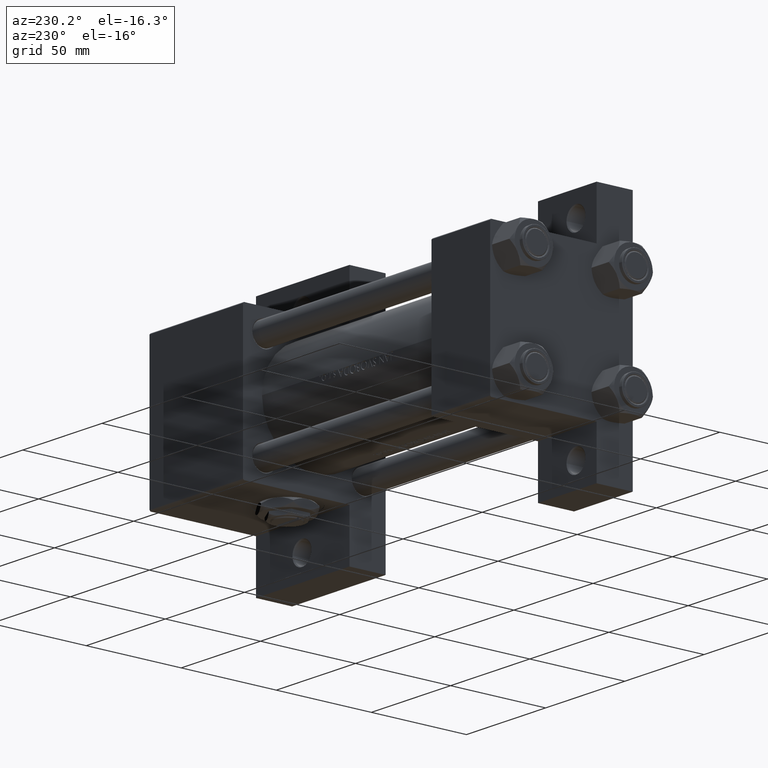
[diagram: clean part render]
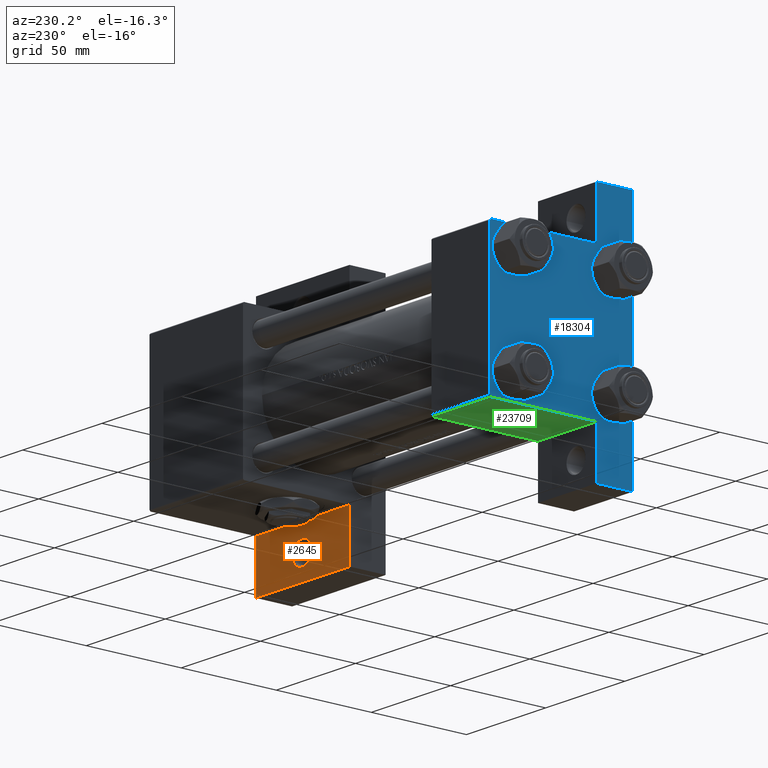
[diagram: same view with three faces highlighted in distinct colors, each labeled with its STEP entity id]
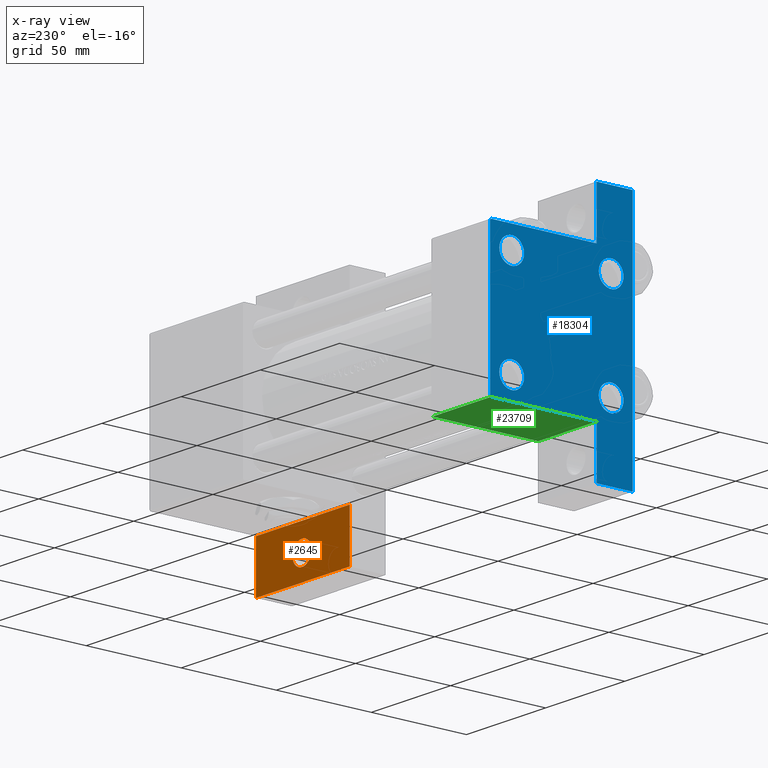
[diagram: x-ray of the same camera — body ghosted, the three highlighted faces saturated]
A machine part, auxiliary view with three faces highlighted in distinct colors.
The next image is the same camera in x-ray (body ghosted, the three faces saturated) — at least one of them is partly hidden behind the body in this view.
Their STEP definitions:

[orange] entity #2645 — the highlighted planar face has unit normal (0, 1, 0).
#950 = CARTESIAN_POINT ( 'NONE',  ( 215.0000000000000284, 37.49999999999996447, -18.50000000000000000 ) ) ;
#2366 = ORIENTED_EDGE ( 'NONE', *, *, #39757, .T. ) ;
#2645 = ADVANCED_FACE ( 'NONE', ( #27720, #9502 ), #24724, .T. ) ;
#3049 = CARTESIAN_POINT ( 'NONE',  ( 186.0000000000000000, 51.00000000000000000, -18.50000000000000000 ) ) ;
#3127 = VERTEX_POINT ( 'NONE', #950 ) ;
#3601 = EDGE_LOOP ( 'NONE', ( #42012, #2366 ) ) ;
#3712 = CARTESIAN_POINT ( 'NONE',  ( 156.0000000000000000, 37.50000000000000000, -18.50000000000000355 ) ) ;
#4039 = EDGE_CURVE ( 'NONE', #15583, #3127, #29985, .T. ) ;
#4447 = DIRECTION ( 'NONE',  ( -1.000000000000000000, 5.880418562633242031E-16, -0.000000000000000000 ) ) ;
#5315 = VERTEX_POINT ( 'NONE', #39258 ) ;
#6231 = CARTESIAN_POINT ( 'NONE',  ( 156.0000000000000284, 63.49999999999998579, -18.50000000000000000 ) ) ;
#8753 = ORIENTED_EDGE ( 'NONE', *, *, #13705, .F. ) ;
#9066 = AXIS2_PLACEMENT_3D ( 'NONE', #9256, #31947, #39914 ) ;
#9256 = CARTESIAN_POINT ( 'NONE',  ( 0.000000000000000000, 0.000000000000000000, -18.50000000000000000 ) ) ;
#9502 = FACE_OUTER_BOUND ( 'NONE', #28206, .T. ) ;
#9650 = CARTESIAN_POINT ( 'NONE',  ( 191.9995000000000402, 51.00000000000000000, -18.50000000000000000 ) ) ;
#10396 = VECTOR ( 'NONE', #21430, 1000.000000000000000 ) ;
#10928 = VECTOR ( 'NONE', #4447, 1000.000000000000000 ) ;
#11652 = EDGE_CURVE ( 'NONE', #40831, #22710, #44895, .T. ) ;
#13705 = EDGE_CURVE ( 'NONE', #22710, #15583, #47839, .T. ) ;
#13746 = CARTESIAN_POINT ( 'NONE',  ( 156.0000000000000284, 63.49999999999998579, -18.50000000000000000 ) ) ;
#15583 = VERTEX_POINT ( 'NONE', #42204 ) ;
#16437 = DIRECTION ( 'NONE',  ( -0.000000000000000000, -0.000000000000000000, -1.000000000000000000 ) ) ;
#16562 = VECTOR ( 'NONE', #21344, 1000.000000000000000 ) ;
#17362 = CARTESIAN_POINT ( 'NONE',  ( 215.0000000000000568, 63.49999999999998579, -18.50000000000000000 ) ) ;
#18295 = VECTOR ( 'NONE', #29707, 1000.000000000000000 ) ;
#21344 = DIRECTION ( 'NONE',  ( -1.067522139062649685E-15, -1.000000000000000000, 0.000000000000000000 ) ) ;
#21430 = DIRECTION ( 'NONE',  ( 1.000000000000000000, 0.000000000000000000, 0.000000000000000000 ) ) ;
#22710 = VERTEX_POINT ( 'NONE', #42180 ) ;
#23677 = CARTESIAN_POINT ( 'NONE',  ( 186.0000000000000000, 51.00000000000000000, -18.50000000000000000 ) ) ;
#24724 = PLANE ( 'NONE',  #9066 ) ;
#25246 = AXIS2_PLACEMENT_3D ( 'NONE', #23677, #16437, #38866 ) ;
#27127 = LINE ( 'NONE', #37597, #10928 ) ;
#27720 = FACE_BOUND ( 'NONE', #3601, .T. ) ;
#28206 = EDGE_LOOP ( 'NONE', ( #31290, #37753, #37783, #8753 ) ) ;
#29707 = DIRECTION ( 'NONE',  ( 1.067522139062651066E-15, 1.000000000000000000, -0.000000000000000000 ) ) ;
#29985 = LINE ( 'NONE', #17362, #16562 ) ;
#31290 = ORIENTED_EDGE ( 'NONE', *, *, #11652, .F. ) ;
#31947 = DIRECTION ( 'NONE',  ( 0.000000000000000000, 0.000000000000000000, 1.000000000000000000 ) ) ;
#33192 = CIRCLE ( 'NONE', #25246, 5.999500000000046462 ) ;
#37597 = CARTESIAN_POINT ( 'NONE',  ( 156.0000000000000000, 37.50000000000000000, -18.50000000000000000 ) ) ;
#37753 = ORIENTED_EDGE ( 'NONE', *, *, #40877, .F. ) ;
#37783 = ORIENTED_EDGE ( 'NONE', *, *, #4039, .F. ) ;
#38866 = DIRECTION ( 'NONE',  ( 1.000000000000000000, 0.000000000000000000, 0.000000000000000000 ) ) ;
#39258 = CARTESIAN_POINT ( 'NONE',  ( 180.0004999999999598, 51.00000000000000000, -18.50000000000000000 ) ) ;
#39757 = EDGE_CURVE ( 'NONE', #5315, #48844, #33192, .T. ) ;
#39914 = DIRECTION ( 'NONE',  ( 1.000000000000000000, 0.000000000000000000, -0.000000000000000000 ) ) ;
#40450 = AXIS2_PLACEMENT_3D ( 'NONE', #3049, #41167, #45641 ) ;
#40831 = VERTEX_POINT ( 'NONE', #3712 ) ;
#40877 = EDGE_CURVE ( 'NONE', #3127, #40831, #27127, .T. ) ;
#41167 = DIRECTION ( 'NONE',  ( -0.000000000000000000, -0.000000000000000000, -1.000000000000000000 ) ) ;
#42012 = ORIENTED_EDGE ( 'NONE', *, *, #42790, .T. ) ;
#42180 = CARTESIAN_POINT ( 'NONE',  ( 156.0000000000000284, 63.49999999999998579, -18.50000000000000000 ) ) ;
#42204 = CARTESIAN_POINT ( 'NONE',  ( 215.0000000000000568, 63.49999999999998579, -18.50000000000000000 ) ) ;
#42790 = EDGE_CURVE ( 'NONE', #48844, #5315, #47572, .T. ) ;
#44895 = LINE ( 'NONE', #13746, #18295 ) ;
#45641 = DIRECTION ( 'NONE',  ( 1.000000000000000000, 0.000000000000000000, 0.000000000000000000 ) ) ;
#47572 = CIRCLE ( 'NONE', #40450, 5.999500000000046462 ) ;
#47839 = LINE ( 'NONE', #6231, #10396 ) ;
#48844 = VERTEX_POINT ( 'NONE', #9650 ) ;

[blue] entity #18304 — the highlighted planar face has unit normal (-1, 0, -0).
#693 = VERTEX_POINT ( 'NONE', #48945 ) ;
#1022 = DIRECTION ( 'NONE',  ( 1.000000000000000000, -0.000000000000000000, 0.000000000000000000 ) ) ;
#1147 = VERTEX_POINT ( 'NONE', #48313 ) ;
#1161 = VERTEX_POINT ( 'NONE', #14672 ) ;
#1322 = FACE_BOUND ( 'NONE', #21246, .T. ) ;
#1345 = AXIS2_PLACEMENT_3D ( 'NONE', #22298, #44478, #14316 ) ;
#2187 = CARTESIAN_POINT ( 'NONE',  ( 0.000000000000000000, -26.14999999999999147, 26.15000000000000924 ) ) ;
#2722 = VERTEX_POINT ( 'NONE', #21223 ) ;
#2800 = CARTESIAN_POINT ( 'NONE',  ( 0.000000000000000000, 37.49999999999999289, 37.50000000000000000 ) ) ;
#3145 = CIRCLE ( 'NONE', #4730, 6.500000000000015987 ) ;
#3476 = CARTESIAN_POINT ( 'NONE',  ( 0.000000000000000000, 26.14999999999999858, -19.64999999999998792 ) ) ;
#4007 = DIRECTION ( 'NONE',  ( -0.000000000000000000, 0.7071067811865474617, 0.7071067811865474617 ) ) ;
#4170 = EDGE_CURVE ( 'NONE', #39359, #1161, #39188, .T. ) ;
#4258 = CARTESIAN_POINT ( 'NONE',  ( 0.000000000000000000, 26.14999999999999858, 26.15000000000000213 ) ) ;
#4537 = CIRCLE ( 'NONE', #32401, 6.500000000000023093 ) ;
#4571 = CIRCLE ( 'NONE', #34693, 6.500000000000015987 ) ;
#4635 = DIRECTION ( 'NONE',  ( 1.000000000000000000, -0.000000000000000000, 0.000000000000000000 ) ) ;
#4730 = AXIS2_PLACEMENT_3D ( 'NONE', #11249, #23209, #26941 ) ;
#4905 = DIRECTION ( 'NONE',  ( 0.000000000000000000, 0.000000000000000000, 1.000000000000000000 ) ) ;
#5054 = FACE_BOUND ( 'NONE', #43305, .T. ) ;
#5145 = CARTESIAN_POINT ( 'NONE',  ( 0.000000000000000000, 26.14999999999999858, 26.15000000000000213 ) ) ;
#5198 = ORIENTED_EDGE ( 'NONE', *, *, #31385, .T. ) ;
#5222 = VECTOR ( 'NONE', #24750, 1000.000000000000000 ) ;
#5227 = AXIS2_PLACEMENT_3D ( 'NONE', #32180, #47369, #17221 ) ;
#5314 = ORIENTED_EDGE ( 'NONE', *, *, #18549, .T. ) ;
#6453 = ORIENTED_EDGE ( 'NONE', *, *, #42840, .F. ) ;
#7190 = EDGE_CURVE ( 'NONE', #15923, #35590, #3145, .T. ) ;
#7420 = ORIENTED_EDGE ( 'NONE', *, *, #7190, .T. ) ;
#7533 = VECTOR ( 'NONE', #34788, 1000.000000000000000 ) ;
#7744 = ORIENTED_EDGE ( 'NONE', *, *, #39047, .T. ) ;
#8031 = DIRECTION ( 'NONE',  ( 0.000000000000000000, -1.734723475976806848E-16, -1.000000000000000000 ) ) ;
#8170 = CARTESIAN_POINT ( 'NONE',  ( 0.000000000000000000, 26.14999999999999858, 19.64999999999998437 ) ) ;
#8353 = CARTESIAN_POINT ( 'NONE',  ( 0.000000000000000000, 36.99999999999999289, 37.50000000000000000 ) ) ;
#8427 = CARTESIAN_POINT ( 'NONE',  ( 1.595073532467135441E-14, 63.50000000000000000, -37.50000000000002132 ) ) ;
#8473 = ORIENTED_EDGE ( 'NONE', *, *, #12731, .T. ) ;
#9126 = VERTEX_POINT ( 'NONE', #12735 ) ;
#10027 = VECTOR ( 'NONE', #15181, 1000.000000000000000 ) ;
#10767 = VECTOR ( 'NONE', #44704, 1000.000000000000000 ) ;
#10898 = ORIENTED_EDGE ( 'NONE', *, *, #19306, .T. ) ;
#11249 = CARTESIAN_POINT ( 'NONE',  ( 0.000000000000000000, -26.14999999999999147, -26.15000000000000924 ) ) ;
#11351 = CIRCLE ( 'NONE', #17720, 6.500000000000023093 ) ;
#11971 = CARTESIAN_POINT ( 'NONE',  ( 0.000000000000000000, 37.49999999999999289, -18.49999999999999645 ) ) ;
#12305 = CARTESIAN_POINT ( 'NONE',  ( 0.000000000000000000, -26.14999999999999147, -19.64999999999999503 ) ) ;
#12729 = CARTESIAN_POINT ( 'NONE',  ( 0.000000000000000000, -26.14999999999999147, -32.65000000000002700 ) ) ;
#12731 = EDGE_CURVE ( 'NONE', #24407, #9126, #41879, .T. ) ;
#12735 = CARTESIAN_POINT ( 'NONE',  ( 0.000000000000000000, -37.00000000000000711, 37.49999999999999289 ) ) ;
#12930 = DIRECTION ( 'NONE',  ( -2.877097866686192789E-16, -1.000000000000000000, 0.000000000000000000 ) ) ;
#12965 = AXIS2_PLACEMENT_3D ( 'NONE', #46901, #27987, #46410 ) ;
#14275 = CARTESIAN_POINT ( 'NONE',  ( 0.000000000000000000, -26.14999999999999147, 32.65000000000003411 ) ) ;
#14316 = DIRECTION ( 'NONE',  ( 0.000000000000000000, 0.000000000000000000, 1.000000000000000000 ) ) ;
#14672 = CARTESIAN_POINT ( 'NONE',  ( 3.977209754999747208E-16, -63.50000000000000000, -37.49999999999999289 ) ) ;
#14859 = ORIENTED_EDGE ( 'NONE', *, *, #41114, .T. ) ;
#15181 = DIRECTION ( 'NONE',  ( 0.000000000000000000, -1.000000000000000000, -9.251858538542972814E-17 ) ) ;
#15513 = VECTOR ( 'NONE', #48703, 1000.000000000000114 ) ;
#15923 = VERTEX_POINT ( 'NONE', #12729 ) ;
#16014 = CARTESIAN_POINT ( 'NONE',  ( 3.977209754999747208E-16, -63.49999999999998579, 26.72167621838007889 ) ) ;
#16711 = ORIENTED_EDGE ( 'NONE', *, *, #16926, .F. ) ;
#16926 = EDGE_CURVE ( 'NONE', #2722, #18584, #25137, .T. ) ;
#17221 = DIRECTION ( 'NONE',  ( 0.000000000000000000, 0.000000000000000000, 1.000000000000000000 ) ) ;
#17720 = AXIS2_PLACEMENT_3D ( 'NONE', #4258, #1022, #19713 ) ;
#17799 = CARTESIAN_POINT ( 'NONE',  ( 1.595073532467135441E-14, 63.50000000000001421, 26.72167621838005047 ) ) ;
#17838 = EDGE_CURVE ( 'NONE', #45330, #39359, #37367, .T. ) ;
#17932 = DIRECTION ( 'NONE',  ( 4.278042683914906889E-17, -1.000000000000000000, 0.000000000000000000 ) ) ;
#18167 = VERTEX_POINT ( 'NONE', #14275 ) ;
#18304 = ADVANCED_FACE ( 'NONE', ( #5054, #20252, #35208, #1322, #31707 ), #42430, .T. ) ;
#18549 = EDGE_CURVE ( 'NONE', #42393, #26810, #11351, .T. ) ;
#18584 = VERTEX_POINT ( 'NONE', #11971 ) ;
#18737 = LINE ( 'NONE', #30197, #26124 ) ;
#18827 = VERTEX_POINT ( 'NONE', #8427 ) ;
#18843 = EDGE_LOOP ( 'NONE', ( #10898, #7420 ) ) ;
#18993 = CARTESIAN_POINT ( 'NONE',  ( 3.977209754999747208E-16, -63.50000000000000000, -18.50000000000000355 ) ) ;
#19306 = EDGE_CURVE ( 'NONE', #35590, #15923, #38459, .T. ) ;
#19713 = DIRECTION ( 'NONE',  ( 0.000000000000000000, 0.000000000000000000, 1.000000000000000000 ) ) ;
#20252 = FACE_BOUND ( 'NONE', #18843, .T. ) ;
#21148 = CARTESIAN_POINT ( 'NONE',  ( 0.000000000000000000, 26.14999999999999858, -26.15000000000000213 ) ) ;
#21223 = CARTESIAN_POINT ( 'NONE',  ( 1.595073532467135441E-14, 63.50000000000000000, -18.50000000000000355 ) ) ;
#21246 = EDGE_LOOP ( 'NONE', ( #5314, #37824 ) ) ;
#21607 = DIRECTION ( 'NONE',  ( 0.000000000000000000, 0.000000000000000000, 1.000000000000000000 ) ) ;
#21840 = CARTESIAN_POINT ( 'NONE',  ( -7.145701223179004046E-16, -37.50000000000000711, -18.50000000000000355 ) ) ;
#22298 = CARTESIAN_POINT ( 'NONE',  ( 0.000000000000000000, -26.14999999999999147, 26.15000000000000924 ) ) ;
#22386 = ORIENTED_EDGE ( 'NONE', *, *, #17838, .F. ) ;
#22843 = ORIENTED_EDGE ( 'NONE', *, *, #37649, .T. ) ;
#22938 = CARTESIAN_POINT ( 'NONE',  ( -0.000000000000000000, -37.25000000000000000, 37.25000000000000000 ) ) ;
#23209 = DIRECTION ( 'NONE',  ( 1.000000000000000000, -0.000000000000000000, 0.000000000000000000 ) ) ;
#23413 = CARTESIAN_POINT ( 'NONE',  ( 0.000000000000000000, 37.49999999999999289, -37.50000000000000000 ) ) ;
#23581 = DIRECTION ( 'NONE',  ( 0.000000000000000000, 0.000000000000000000, 1.000000000000000000 ) ) ;
#23638 = EDGE_LOOP ( 'NONE', ( #6453, #8473, #33607, #48705, #47156, #16711, #47042, #43767, #24869, #22386 ) ) ;
#24407 = VERTEX_POINT ( 'NONE', #41803 ) ;
#24408 = CIRCLE ( 'NONE', #1345, 6.500000000000023093 ) ;
#24465 = AXIS2_PLACEMENT_3D ( 'NONE', #2187, #25831, #21607 ) ;
#24750 = DIRECTION ( 'NONE',  ( 0.000000000000000000, 0.000000000000000000, -1.000000000000000000 ) ) ;
#24869 = ORIENTED_EDGE ( 'NONE', *, *, #4170, .F. ) ;
#24959 = AXIS2_PLACEMENT_3D ( 'NONE', #38031, #4635, #23581 ) ;
#24992 = LINE ( 'NONE', #2800, #5222 ) ;
#25137 = LINE ( 'NONE', #39599, #35173 ) ;
#25831 = DIRECTION ( 'NONE',  ( 1.000000000000000000, -0.000000000000000000, 0.000000000000000000 ) ) ;
#26124 = VECTOR ( 'NONE', #45394, 1000.000000000000000 ) ;
#26810 = VERTEX_POINT ( 'NONE', #8170 ) ;
#26825 = CARTESIAN_POINT ( 'NONE',  ( 0.000000000000000000, 37.49999999999999289, 37.50000000000000000 ) ) ;
#26941 = DIRECTION ( 'NONE',  ( 0.000000000000000000, 0.000000000000000000, 1.000000000000000000 ) ) ;
#27175 = VERTEX_POINT ( 'NONE', #8353 ) ;
#27855 = EDGE_CURVE ( 'NONE', #27175, #9126, #45256, .T. ) ;
#27987 = DIRECTION ( 'NONE',  ( -1.000000000000000000, 0.000000000000000000, -0.000000000000000000 ) ) ;
#28037 = EDGE_CURVE ( 'NONE', #2722, #18827, #29517, .T. ) ;
#28335 = EDGE_CURVE ( 'NONE', #1147, #18584, #24992, .T. ) ;
#29030 = CARTESIAN_POINT ( 'NONE',  ( 0.000000000000000000, 26.14999999999999858, 32.65000000000002700 ) ) ;
#29297 = EDGE_CURVE ( 'NONE', #18827, #1161, #30629, .T. ) ;
#29517 = LINE ( 'NONE', #17799, #10767 ) ;
#29894 = CARTESIAN_POINT ( 'NONE',  ( 3.977209754999744250E-16, -63.49999999999998579, -18.50000000000000355 ) ) ;
#30197 = CARTESIAN_POINT ( 'NONE',  ( 0.000000000000000000, -37.50000000000000711, 37.49999999999999289 ) ) ;
#30629 = LINE ( 'NONE', #23413, #10027 ) ;
#31385 = EDGE_CURVE ( 'NONE', #34624, #42197, #43414, .T. ) ;
#31566 = EDGE_CURVE ( 'NONE', #27175, #1147, #47976, .T. ) ;
#31707 = FACE_OUTER_BOUND ( 'NONE', #23638, .T. ) ;
#32180 = CARTESIAN_POINT ( 'NONE',  ( 0.000000000000000000, 26.14999999999999858, -26.15000000000000213 ) ) ;
#32401 = AXIS2_PLACEMENT_3D ( 'NONE', #5145, #43009, #4905 ) ;
#33269 = CARTESIAN_POINT ( 'NONE',  ( 0.000000000000000000, 37.24999999999999289, 37.24999999999999289 ) ) ;
#33607 = ORIENTED_EDGE ( 'NONE', *, *, #27855, .F. ) ;
#34624 = VERTEX_POINT ( 'NONE', #45883 ) ;
#34693 = AXIS2_PLACEMENT_3D ( 'NONE', #21148, #36584, #36343 ) ;
#34788 = DIRECTION ( 'NONE',  ( 0.000000000000000000, -1.000000000000000000, -9.251858538542971581E-17 ) ) ;
#34804 = CIRCLE ( 'NONE', #24465, 6.500000000000023093 ) ;
#35173 = VECTOR ( 'NONE', #12930, 1000.000000000000000 ) ;
#35208 = FACE_BOUND ( 'NONE', #40752, .T. ) ;
#35590 = VERTEX_POINT ( 'NONE', #12305 ) ;
#36343 = DIRECTION ( 'NONE',  ( 0.000000000000000000, 0.000000000000000000, 1.000000000000000000 ) ) ;
#36584 = DIRECTION ( 'NONE',  ( 1.000000000000000000, -0.000000000000000000, 0.000000000000000000 ) ) ;
#36908 = EDGE_CURVE ( 'NONE', #26810, #42393, #4537, .T. ) ;
#37367 = LINE ( 'NONE', #29894, #39999 ) ;
#37649 = EDGE_CURVE ( 'NONE', #42197, #34624, #4571, .T. ) ;
#37824 = ORIENTED_EDGE ( 'NONE', *, *, #36908, .T. ) ;
#38031 = CARTESIAN_POINT ( 'NONE',  ( 0.000000000000000000, -26.14999999999999147, -26.15000000000000924 ) ) ;
#38215 = VECTOR ( 'NONE', #4007, 1000.000000000000114 ) ;
#38459 = CIRCLE ( 'NONE', #24959, 6.500000000000015987 ) ;
#39047 = EDGE_CURVE ( 'NONE', #693, #18167, #24408, .T. ) ;
#39188 = LINE ( 'NONE', #16014, #45184 ) ;
#39359 = VERTEX_POINT ( 'NONE', #18993 ) ;
#39599 = CARTESIAN_POINT ( 'NONE',  ( 1.595073532467135757E-14, 63.50000000000001421, -18.50000000000000355 ) ) ;
#39999 = VECTOR ( 'NONE', #17932, 1000.000000000000000 ) ;
#40752 = EDGE_LOOP ( 'NONE', ( #22843, #5198 ) ) ;
#41114 = EDGE_CURVE ( 'NONE', #18167, #693, #34804, .T. ) ;
#41803 = CARTESIAN_POINT ( 'NONE',  ( 0.000000000000000000, -37.50000000000000711, 36.99999999999999289 ) ) ;
#41879 = LINE ( 'NONE', #22938, #38215 ) ;
#42197 = VERTEX_POINT ( 'NONE', #3476 ) ;
#42393 = VERTEX_POINT ( 'NONE', #29030 ) ;
#42430 = PLANE ( 'NONE',  #12965 ) ;
#42840 = EDGE_CURVE ( 'NONE', #24407, #45330, #18737, .T. ) ;
#43009 = DIRECTION ( 'NONE',  ( 1.000000000000000000, -0.000000000000000000, 0.000000000000000000 ) ) ;
#43305 = EDGE_LOOP ( 'NONE', ( #14859, #7744 ) ) ;
#43414 = CIRCLE ( 'NONE', #5227, 6.500000000000015987 ) ;
#43767 = ORIENTED_EDGE ( 'NONE', *, *, #29297, .T. ) ;
#44478 = DIRECTION ( 'NONE',  ( 1.000000000000000000, -0.000000000000000000, 0.000000000000000000 ) ) ;
#44704 = DIRECTION ( 'NONE',  ( 0.000000000000000000, -1.734723475976806848E-16, -1.000000000000000000 ) ) ;
#45184 = VECTOR ( 'NONE', #8031, 1000.000000000000000 ) ;
#45256 = LINE ( 'NONE', #26825, #7533 ) ;
#45330 = VERTEX_POINT ( 'NONE', #21840 ) ;
#45394 = DIRECTION ( 'NONE',  ( 0.000000000000000000, 9.251858538542971581E-17, -1.000000000000000000 ) ) ;
#45883 = CARTESIAN_POINT ( 'NONE',  ( 0.000000000000000000, 26.14999999999999858, -32.65000000000001990 ) ) ;
#46410 = DIRECTION ( 'NONE',  ( -0.000000000000000000, 0.000000000000000000, 1.000000000000000000 ) ) ;
#46901 = CARTESIAN_POINT ( 'NONE',  ( 0.000000000000000000, 0.000000000000000000, 0.000000000000000000 ) ) ;
#47042 = ORIENTED_EDGE ( 'NONE', *, *, #28037, .T. ) ;
#47156 = ORIENTED_EDGE ( 'NONE', *, *, #28335, .T. ) ;
#47369 = DIRECTION ( 'NONE',  ( 1.000000000000000000, -0.000000000000000000, 0.000000000000000000 ) ) ;
#47976 = LINE ( 'NONE', #33269, #15513 ) ;
#48313 = CARTESIAN_POINT ( 'NONE',  ( 0.000000000000000000, 37.49999999999999289, 37.00000000000000000 ) ) ;
#48703 = DIRECTION ( 'NONE',  ( 0.000000000000000000, 0.7071067811865474617, -0.7071067811865474617 ) ) ;
#48705 = ORIENTED_EDGE ( 'NONE', *, *, #31566, .T. ) ;
#48945 = CARTESIAN_POINT ( 'NONE',  ( 0.000000000000000000, -26.14999999999999147, 19.64999999999999147 ) ) ;

[green] entity #23709 — the highlighted planar face has unit normal (0, 0, -1).
#1034 = EDGE_LOOP ( 'NONE', ( #26854, #33364, #1448, #9409 ) ) ;
#1147 = VERTEX_POINT ( 'NONE', #48313 ) ;
#1448 = ORIENTED_EDGE ( 'NONE', *, *, #2502, .T. ) ;
#2502 = EDGE_CURVE ( 'NONE', #1147, #15358, #48462, .T. ) ;
#2800 = CARTESIAN_POINT ( 'NONE',  ( 0.000000000000000000, 37.49999999999999289, 37.50000000000000000 ) ) ;
#5222 = VECTOR ( 'NONE', #24750, 1000.000000000000000 ) ;
#6121 = LINE ( 'NONE', #10574, #39458 ) ;
#7353 = DIRECTION ( 'NONE',  ( 1.000000000000000000, 0.000000000000000000, 0.000000000000000000 ) ) ;
#7698 = CARTESIAN_POINT ( 'NONE',  ( 37.00000000000000000, 37.49999999999999289, 37.50000000000000000 ) ) ;
#8118 = VECTOR ( 'NONE', #32363, 1000.000000000000000 ) ;
#9129 = FACE_OUTER_BOUND ( 'NONE', #1034, .T. ) ;
#9409 = ORIENTED_EDGE ( 'NONE', *, *, #16182, .T. ) ;
#10574 = CARTESIAN_POINT ( 'NONE',  ( 8.470280871287256020E-15, 37.50000000000002842, -18.49999999999999645 ) ) ;
#11971 = CARTESIAN_POINT ( 'NONE',  ( 0.000000000000000000, 37.49999999999999289, -18.49999999999999645 ) ) ;
#13815 = DIRECTION ( 'NONE',  ( 1.000000000000000000, -3.750753461571474945E-16, 0.000000000000000000 ) ) ;
#15358 = VERTEX_POINT ( 'NONE', #36331 ) ;
#15930 = LINE ( 'NONE', #7698, #8118 ) ;
#16182 = EDGE_CURVE ( 'NONE', #15358, #20815, #15930, .T. ) ;
#16372 = PLANE ( 'NONE',  #26662 ) ;
#18584 = VERTEX_POINT ( 'NONE', #11971 ) ;
#20815 = VERTEX_POINT ( 'NONE', #32470 ) ;
#22063 = CARTESIAN_POINT ( 'NONE',  ( 37.00000000000000000, 37.49999999999999289, 37.00000000000000000 ) ) ;
#23709 = ADVANCED_FACE ( 'NONE', ( #9129 ), #16372, .T. ) ;
#24352 = DIRECTION ( 'NONE',  ( 0.000000000000000000, -0.000000000000000000, 1.000000000000000000 ) ) ;
#24750 = DIRECTION ( 'NONE',  ( 0.000000000000000000, 0.000000000000000000, -1.000000000000000000 ) ) ;
#24992 = LINE ( 'NONE', #2800, #5222 ) ;
#26662 = AXIS2_PLACEMENT_3D ( 'NONE', #34812, #39298, #24352 ) ;
#26854 = ORIENTED_EDGE ( 'NONE', *, *, #29771, .F. ) ;
#28335 = EDGE_CURVE ( 'NONE', #1147, #18584, #24992, .T. ) ;
#29771 = EDGE_CURVE ( 'NONE', #18584, #20815, #6121, .T. ) ;
#30558 = VECTOR ( 'NONE', #7353, 1000.000000000000000 ) ;
#32363 = DIRECTION ( 'NONE',  ( 0.000000000000000000, 0.000000000000000000, -1.000000000000000000 ) ) ;
#32470 = CARTESIAN_POINT ( 'NONE',  ( 37.00000000000000711, 37.50000000000000711, -18.50000000000000355 ) ) ;
#33364 = ORIENTED_EDGE ( 'NONE', *, *, #28335, .F. ) ;
#34812 = CARTESIAN_POINT ( 'NONE',  ( 37.00000000000000000, 37.49999999999999289, 37.50000000000000000 ) ) ;
#36331 = CARTESIAN_POINT ( 'NONE',  ( 37.00000000000000000, 37.49999999999999289, 37.00000000000000000 ) ) ;
#39298 = DIRECTION ( 'NONE',  ( -0.000000000000000000, 1.000000000000000000, 0.000000000000000000 ) ) ;
#39458 = VECTOR ( 'NONE', #13815, 1000.000000000000000 ) ;
#48313 = CARTESIAN_POINT ( 'NONE',  ( 0.000000000000000000, 37.49999999999999289, 37.00000000000000000 ) ) ;
#48462 = LINE ( 'NONE', #22063, #30558 ) ;